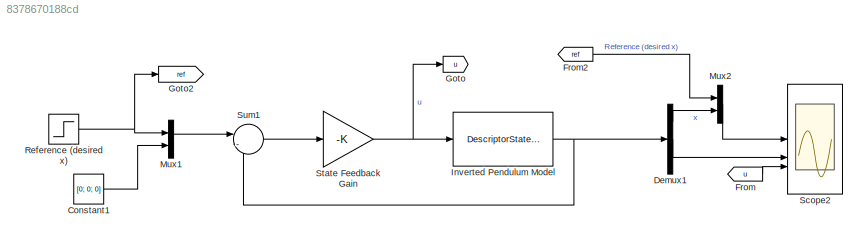
MODEL slx_8378670188cd
KIND model
CONFIG AbsTol = auto
CONFIG EnableMultiTasking = off
CONFIG FixedStep = auto
CONFIG MaxStep = auto
CONFIG MinStep = auto
CONFIG RelTol = 1e-3
CONFIG SampleTimeConstraint = Unconstrained
CONFIG SolverName = VariableStepAuto
CONFIG StartTime = 0.0
CONFIG StopTime = 10
BLOCK [Constant] Constant1
  Value = [0; 0; 0]
BLOCK [Demux] Demux1
  Outputs = [1 1 2]
BLOCK [From] From
  GotoTag = u
BLOCK [From] From2
  GotoTag = ref
BLOCK [Goto] Goto
  GotoTag = u
BLOCK [Goto] Goto2
  GotoTag = ref
BLOCK [DescriptorStateSpace] Inverted Pendulum Model
  A = A
  B = B
  C = Cc
  D = Dc
  E = eye(4)
BLOCK [Mux] Mux1
  DisplayOption = bar
  Inputs = 2
BLOCK [Mux] Mux2
  DisplayOption = bar
  Inputs = 2
BLOCK [Step] Reference (desired x)
  After = x_desired
  SampleTime = 0
BLOCK [Scope] Scope2
  Floating = off
  NumInputPorts = 3
  ScopeSpecificationString = Simulink.scopes.TimeScopeBlockCfg('CurrentConfiguration', extmgr.ConfigurationSet(extmgr.Configuration('Core','General UI',true),extmgr.Configuration('Core','Source UI',true),extmgr.Configuration('Sources','WiredSimulink',true,'DataLogging',true,'DataLoggingVariableName','ScopeData2','DataLoggingSaveFormat','StructureWithTime'),extmgr.Configuration('Visuals','Time Domain',true,'SerializedDisplays'...<+3263ch>
BLOCK [Gain] State Feedback  Gain
  Gain = -K
  Multiplication = Matrix(K*u)
BLOCK [Sum] Sum1
  Inputs = |-+
LINE Constant1:1 -> Mux1:2
LINE Demux1:1 -> Mux2:2
LINE Demux1:2 -> Scope2:2
LINE From2:1 -> Mux2:1
LINE From:1 -> Scope2:3
NET Inverted Pendulum Model:1 -> Demux1:1, Sum1:2
LINE Mux1:1 -> Sum1:1
LINE Mux2:1 -> Scope2:1
NET Reference (desired x):1 -> Goto2:1, Mux1:1
NET State Feedback  Gain:1 -> Goto:1, Inverted Pendulum Model:1
LINE Sum1:1 -> State Feedback  Gain:1
note: NET lines group one-source signal fan-out (src -> all destinations, sorted); 1:1 wires keep LINE
